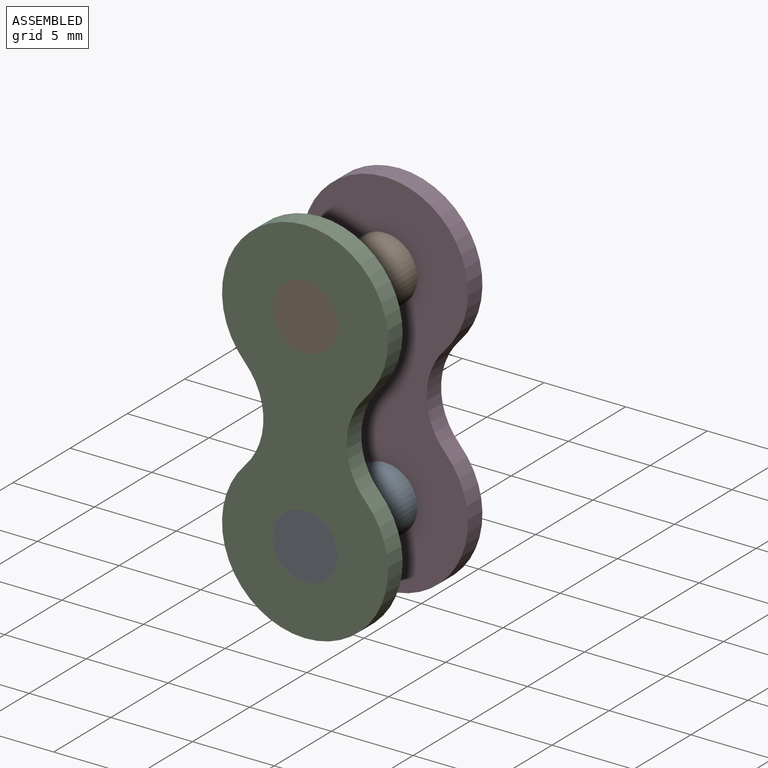
[diagram: assembled view]
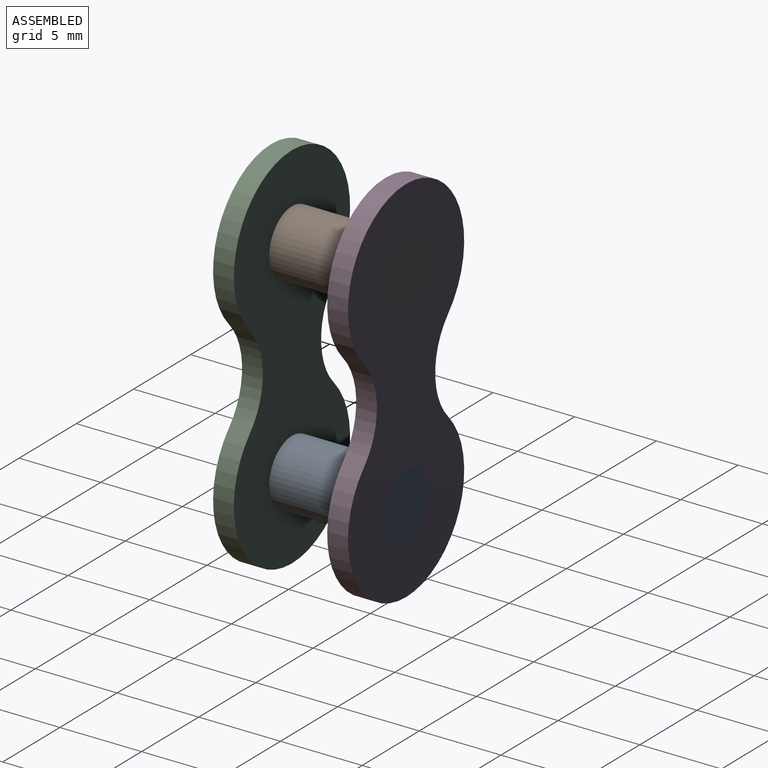
[diagram: assembled view, second angle]
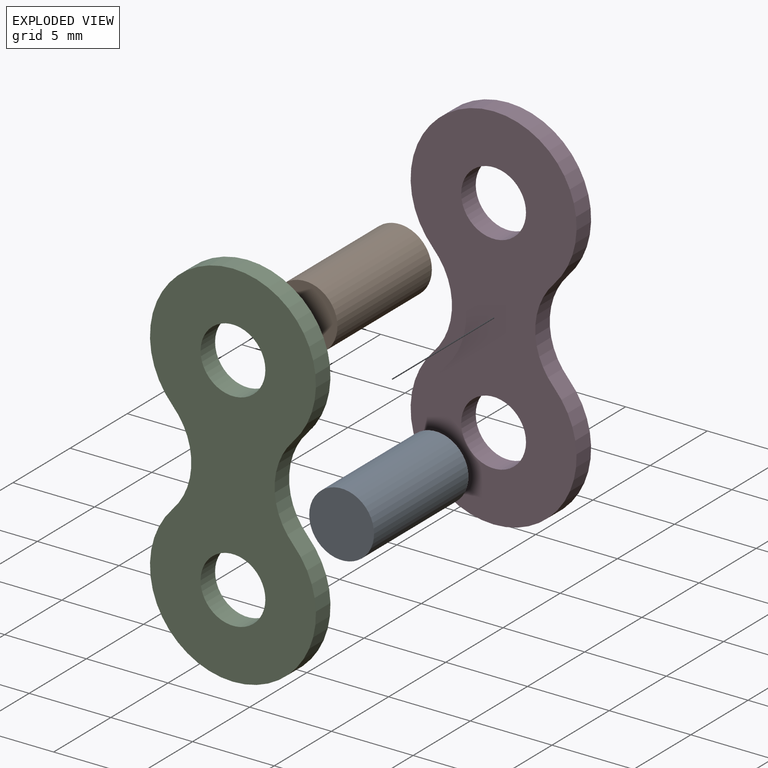
[diagram: exploded view]
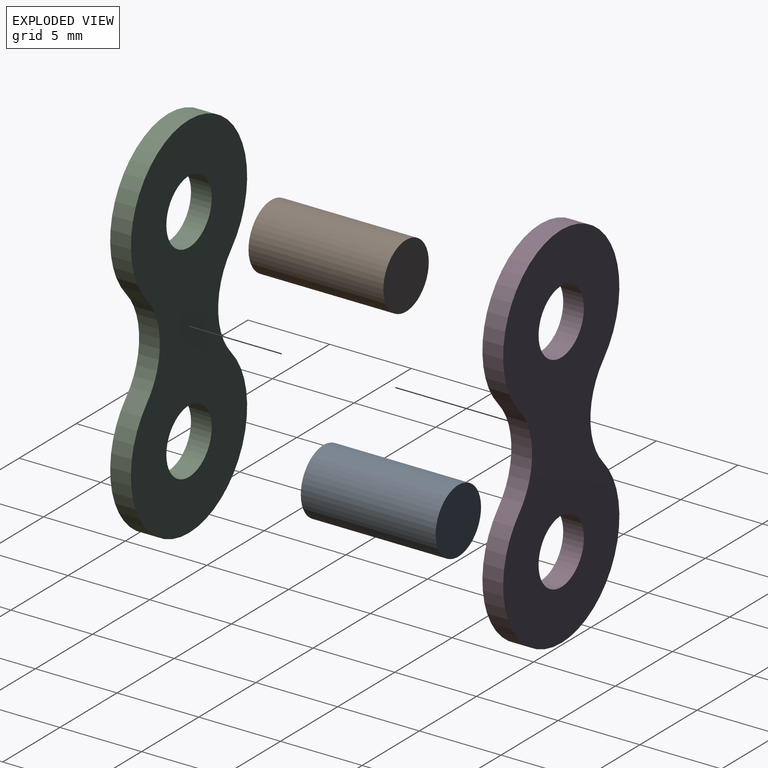
[diagram: exploded view, second angle]
ASSEMBLY  parts=4 mates=3
PART A: 3 faces, bbox 4x8.3x4 mm
  f0: cylinder r=1.98mm len=8.26mm, axis (0,1,0), area 102.9mm2, adj f1,f2
  f1: plane 3.97x3.97mm, normal (0,-1,0), area 12.4mm2, adj f0
  f2: plane 3.97x3.97mm, normal (0,1,0), area 12.4mm2, adj f0
PART B: same geometry as A
PART C: 8 faces, bbox 10.2x1.3x22.9 mm
  f0: cylinder r=4.15mm len=5.71mm, axis (0,1,0), area 8mm2, adj f1,f5,f6,f7
  f1: cylinder r=5.08mm len=10.16mm, axis (0,1,0), area 30.1mm2, adj f0,f2,f6,f7
  f2: cylinder r=4.15mm len=5.71mm, axis (0,1,0), area 8mm2, adj f1,f5,f6,f7
  f3: cylinder r=1.98mm len=3.97mm, axis (0,1,0), area 15.8mm2, adj f6,f7
  f4: cylinder r=1.98mm len=3.97mm, axis (0,1,0), area 15.8mm2, adj f6,f7
  f5: cylinder r=5.08mm len=10.16mm, axis (0,1,0), area 30.1mm2, adj f0,f2,f6,f7
  f6: plane 22.86x10.16mm, normal (0,-1,0), area 154.4mm2, adj f0,f1,f2,f3,f4,f5
  f7: plane 22.86x10.16mm, normal (0,1,0), area 154.4mm2, adj f0,f1,f2,f3,f4,f5
PART D: same geometry as C
PLACE A t=(-1.93,15.84,-15.22)mm
PLACE B t=(-1.93,15.84,-2.52)mm
PLACE C t=(-1.93,8.86,-2.52)mm
PLACE D t=(-1.93,15.84,-2.52)mm
MATE fastened B.f0 <-> D.f3  axis (0,1,0) through (-1.93,15.84,-2.52)mm
MATE fastened B.f0 <-> C.f3  axis (0,-1,0) through (-1.93,7.59,-2.52)mm
MATE fastened A.f0 <-> D.f1  axis (0,1,0) through (-1.93,15.84,-15.22)mm
